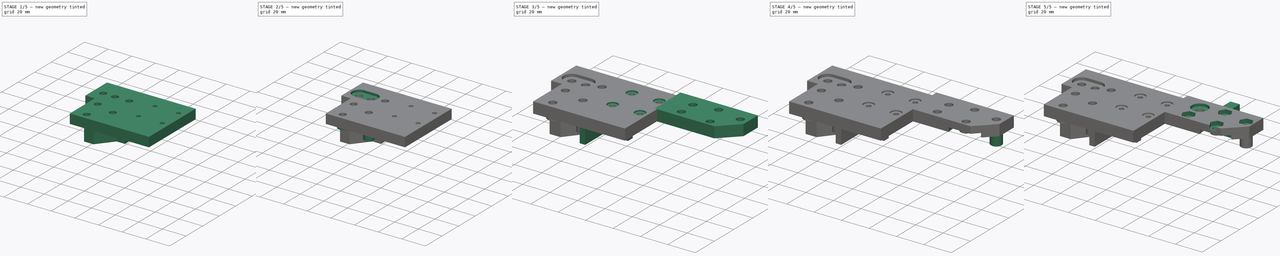
[diagram: build sequence overview — one tinted view per stage of 5, left to right]
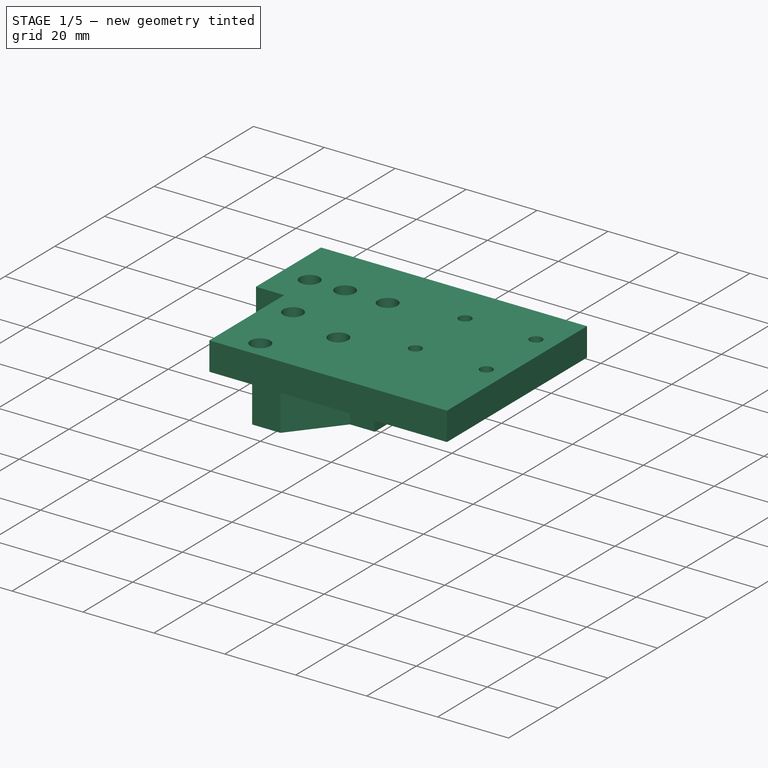
[diagram: stage 1 of 5 — iso view after this stage's code; geometry added in this stage tinted green]
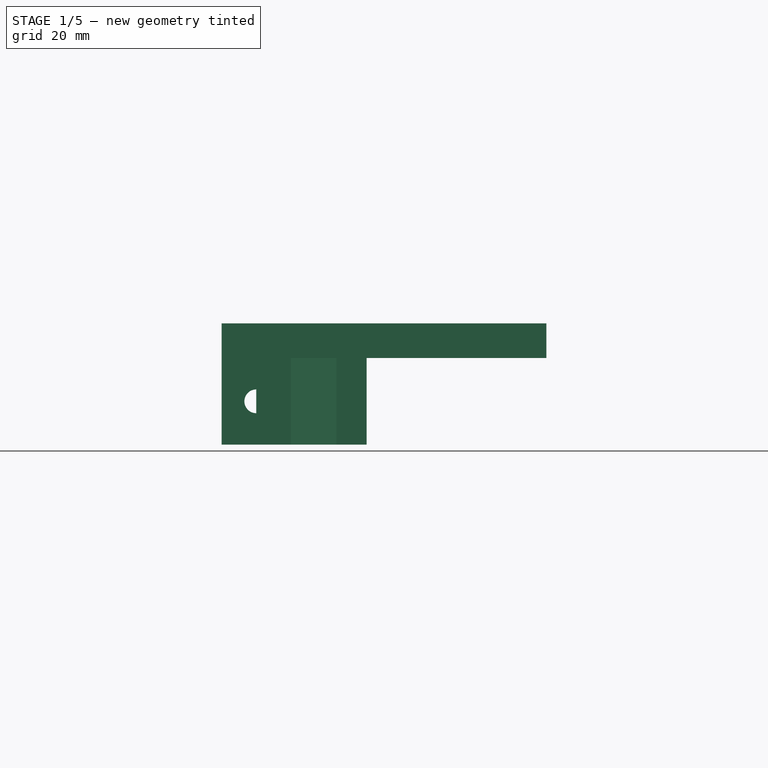
[diagram: stage 1 of 5 — front view after this stage's code; geometry added in this stage tinted green]
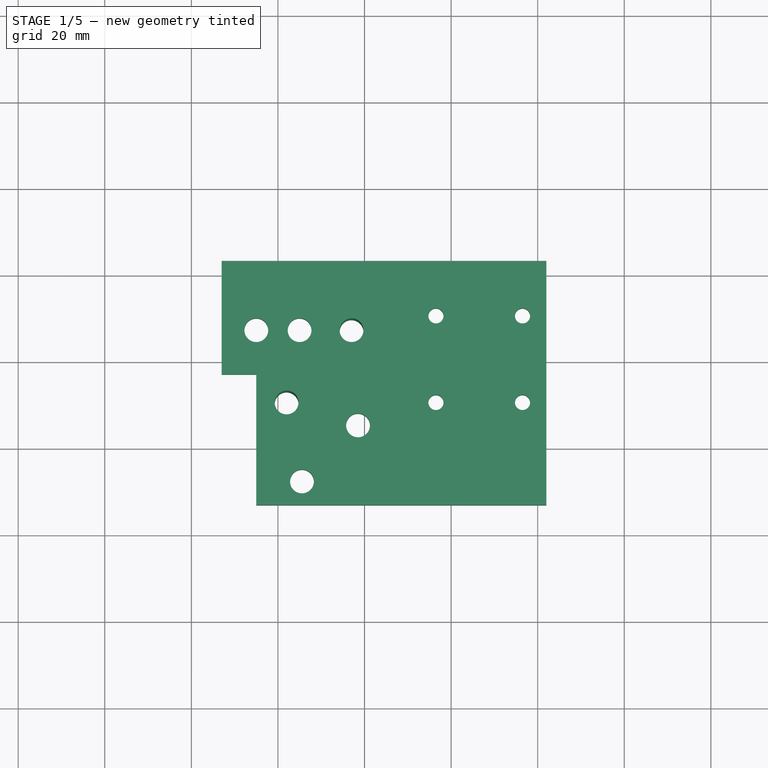
[diagram: stage 1 of 5 — top view after this stage's code; geometry added in this stage tinted green]
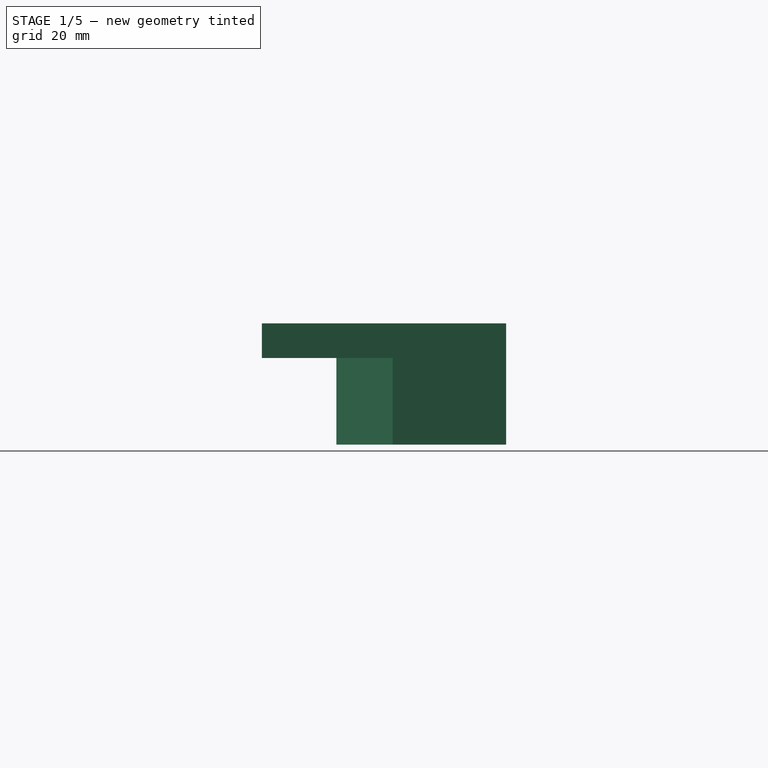
[diagram: stage 1 of 5 — right view after this stage's code; geometry added in this stage tinted green]
FCSTD DOCUMENT  (FreeCAD 0.20R27518 (Git))
Label: gantry right bracket
License: All rights reserved
LicenseURL: http://en.wikipedia.org/wiki/All_rights_reserved
objects: Sketcher::SketchObject×21, PartDesign::Pad×14, PartDesign::Pocket×7, PartDesign::Body×2, Part::Feature×1, PartDesign::SubShapeBinder×1, Part::FeaturePython×1, PartDesign::Plane×1
note: 69 computed .brp shape members not serialized (recipe doc carries the construction recipe); baked Part::Feature solids carry a one-line shape summary decoded from their .brp

FEATURE [Part::Feature] Part__Feature  label="MGN12H"
  Placement = pos=(-13.5,23,-11) rot=(0,0,1;0rad)
  shape: bbox 27 x 45.4 x 11 mm, 40 faces (baked)
FEATURE [PartDesign::SubShapeBinder] Binder
  BindCopyOnChange = 0
  BindMode = 0
  ClaimChildren = false
  Context = -> Body [Binder.]
  Fuse = false
  MakeFace = true
  PartialLoad = false
  Relative = true
  Support = -> [Part__Feature]
  _Version = 2
FEATURE [Sketcher::SketchObject] Sketch
  ExternalGeometry = -> [Binder]
  FullyConstrained = true
  MapMode = 5
  Support = -> [XY_Plane]
  sketch-geometry (16):
    g0: Circle CenterX=-23.5 CenterY=10.3 CenterZ=0 NormalX=0 NormalY=0 NormalZ=1 AngleXU=0 Radius=1.75
    g1: Circle CenterX=-3.5 CenterY=10.3 CenterZ=0 NormalX=0 NormalY=0 NormalZ=1 AngleXU=0 Radius=1.75
    g2: Circle CenterX=-23.5 CenterY=-9.7 CenterZ=0 NormalX=0 NormalY=0 NormalZ=1 AngleXU=0 Radius=1.75
    g3: Circle CenterX=-3.5 CenterY=-9.7 CenterZ=0 NormalX=0 NormalY=0 NormalZ=1 AngleXU=0 Radius=1.75
    g4: Circle CenterX=-55 CenterY=7 CenterZ=0 NormalX=0 NormalY=0 NormalZ=1 AngleXU=0 Radius=2.75
    g5: LineSegment StartX=0 StartY=23 StartZ=0 EndX=-73 EndY=23 EndZ=0
    g6: LineSegment StartX=0 StartY=-33.4 StartZ=0 EndX=-65 EndY=-33.4 EndZ=0
    g7: Circle CenterX=-41.5 CenterY=-15 CenterZ=0 NormalX=0 NormalY=0 NormalZ=1 AngleXU=0 Radius=2.75
    g8: Circle CenterX=-54.45 CenterY=-27.95 CenterZ=0 NormalX=0 NormalY=0 NormalZ=1 AngleXU=0 Radius=2.75
    g9: LineSegment StartX=0 StartY=23 StartZ=0 EndX=2 EndY=23 EndZ=0
    g10: LineSegment StartX=2 StartY=23 StartZ=0 EndX=2 EndY=-33.4 EndZ=0
    g11: LineSegment StartX=2 StartY=-33.4 StartZ=0 EndX=0 EndY=-33.4 EndZ=0
    g12: LineSegment StartX=-73 StartY=23 StartZ=0 EndX=-73 EndY=-3.2 EndZ=0
    g13: LineSegment StartX=-73 StartY=-3.2 StartZ=0 EndX=-65 EndY=-3.2 EndZ=0
    g14: LineSegment StartX=-65 StartY=-3.2 StartZ=0 EndX=-65 EndY=-33.4 EndZ=0
    g15: Circle CenterX=-65 CenterY=7 CenterZ=0 NormalX=0 NormalY=0 NormalZ=1 AngleXU=0 Radius=2.75
  constraints (44):
    c: Coincident(g0,g-3)
    c: Coincident(g1,g-4)
    c: Coincident(g2,g-5)
    c: Coincident(g3,g-6)
    c: Diameter(g0) = 3.5
    c: Equal(g0,g1)
    c: Equal(g1,g2)
    c: Equal(g2,g3)
    c: PointOnObject(g6,g-2)
    c: Diameter(g4) = 5.5
    c: Horizontal(g5)
    c: PointOnObject(g-8,g5)
    c: Horizontal(g6)
    c: DistanceY(g6,g-7) = 11
    c: Equal(g4,g7)
    c: Equal(g7,g8)
    c: DistanceY(g7,g5) = 38
    c: DistanceX(g5,g7) = -41.5
    c: DistanceX(g5,g8) = -54.45
    c: DistanceY(g8,g5) = 50.95
    c: PointOnObject(g5,g-2)
    c: Coincident(g9,g5)
    c: Horizontal(g9)
    c: Coincident(g10,g9)
    c: Vertical(g10)
    c: Coincident(g11,g10)
    c: Coincident(g11,g6)
    c: Horizontal(g11)
    c: DistanceX(g11,g11) = -2
    c: DistanceY(g4,g5) = 16
    c: DistanceX(g4,g5) = 55
    c: DistanceX(g6,g6) = 65
    c: DistanceX(g5,g5) = 73
    c: Coincident(g12,g5)
    c: Vertical(g12)
    c: Coincident(g13,g12)
    c: Horizontal(g13)
    c: Coincident(g14,g13)
    c: Coincident(g14,g6)
    c: Vertical(g14)
    c: DistanceY(g12,g12) = 26.2
    c: Horizontal(g15,g4)
    c: Equal(g15,g4)
    c: DistanceX(g15,g4) = 10
FEATURE [PartDesign::Pad] Pad
  Direction = (0,0,1)
  Length = 8
  Length2 = 100
  Profile = -> Sketch
  ReferenceAxis = -> Sketch [N_Axis]
  Refine = true
  Type = 0
FEATURE [Sketcher::SketchObject] Sketch001
  AttachmentOffset = pos=(0,0,0) rot=(1,0,0;3.14159rad)
  ExternalGeometry = -> [Binder]
  FullyConstrained = true
  MapMode = 5
  Placement = pos=(0,0,0) rot=(1,0,0;3.14159rad)
  Support = -> [XY_Plane]
  sketch-geometry (11):
    g0: LineSegment StartX=-73 StartY=-23 StartZ=0 EndX=-39.5 EndY=-23 EndZ=0
    g1: LineSegment StartX=-73 StartY=-23 StartZ=0 EndX=-73 EndY=-17 EndZ=0
    g2: LineSegment StartX=-73 StartY=-17 StartZ=0 EndX=-47.5 EndY=-17 EndZ=0
    g3: LineSegment StartX=-47.5 StartY=-17 StartZ=0 EndX=-47.5 EndY=3.2 EndZ=0
    g4: LineSegment StartX=-47.5 StartY=3.2 StartZ=0 EndX=-65 EndY=3.2 EndZ=0
    g5: LineSegment StartX=-65 StartY=3.2 StartZ=0 EndX=-65 EndY=16.2 EndZ=0
    g6: LineSegment StartX=-65 StartY=16.2 StartZ=0 EndX=-57 EndY=16.2 EndZ=0
    g7: LineSegment StartX=-57 StartY=16.2 StartZ=0 EndX=-46.5 EndY=3.2 EndZ=0
    g8: LineSegment StartX=-46.5 StartY=3.2 StartZ=0 EndX=-39.5 EndY=3.2 EndZ=0
    g9: LineSegment StartX=-39.5 StartY=3.2 StartZ=0 EndX=-39.5 EndY=-23 EndZ=0
    g10: GeomPoint X=-13.5 Y=9.7 Z=0
  constraints (31):
    c: Horizontal(g0)
    c: Coincident(g1,g0)
    c: DistanceY(g1,g1) = 6
    c: Coincident(g2,g1)
    c: Horizontal(g2)
    c: Coincident(g3,g2)
    c: Vertical(g3)
    c: Coincident(g4,g3)
    c: Horizontal(g4)
    c: DistanceY(g3,g3) = 20.2
    c: Coincident(g5,g4)
    c: Vertical(g5)
    c: DistanceY(g5,g5) = 13
    c: Coincident(g6,g5)
    c: Horizontal(g6)
    c: DistanceX(g6,g6) = 8
    c: Coincident(g7,g6)
    c: Coincident(g8,g7)
    c: Horizontal(g8)
    c: Coincident(g9,g8)
    c: Coincident(g9,g0)
    c: Vertical(g9)
    c: DistanceX(g8,g8) = 7
    c: DistanceX(g3,g8) = 8
    c: DistanceX(g3,g10) = 34
    c: Horizontal(g3,g7)
    c: DistanceX(g5,g-1) = 65
    c: DistanceY(g-1,g8) = 3.2
    c: Symmetric(g-3,g-4,g10)
    c: DistanceX(g0,g-1) = 73
    c: Vertical(g1)
FEATURE [PartDesign::Pad] Pad001
  BaseFeature = -> Pad
  Direction = (0,-1e-16,-1)
  Length = 20
  Length2 = 100
  Profile = -> Sketch001
  ReferenceAxis = -> Sketch001 [N_Axis]
  Refine = true
  Type = 0
FEATURE [Sketcher::SketchObject] Sketch004
  FullyConstrained = true
  MapMode = 5
  Placement = pos=(0,0,0) rot=(0,0.707107,0.707107;3.14159rad)
  Support = -> [XZ_Plane]
  sketch-geometry (2):
    g0: Circle CenterX=55 CenterY=-10 CenterZ=0 NormalX=0 NormalY=0 NormalZ=1 AngleXU=0 Radius=2.75
    g1: Circle CenterX=65 CenterY=-10 CenterZ=0 NormalX=0 NormalY=0 NormalZ=1 AngleXU=0 Radius=2.75
  constraints (6):
    c: Diameter(g0) = 5.5
    c: DistanceX(g-1,g0) = 55
    c: Equal(g0,g1)
    c: Horizontal(g0,g1)
    c: DistanceX(g0,g1) = 10
    c: DistanceY(g0,g-1) = 10
FEATURE [PartDesign::Pocket] Pocket
  BaseFeature = -> Pad001
  Direction = (0,-1,-2e-16)
  Length = 10
  Length2 = 100
  Profile = -> Sketch004
  ReferenceAxis = -> Sketch004 [N_Axis]
  Refine = true
  Reversed = true
  Type = 1
FEATURE [Sketcher::SketchObject] Sketch005
  FullyConstrained = true
  MapMode = 5
  Support = -> [XY_Plane]
  sketch-geometry (2):
    g0: Circle CenterX=-58 CenterY=-9.7 CenterZ=0 NormalX=0 NormalY=0 NormalZ=1 AngleXU=0 Radius=2.75
    g1: Circle CenterX=-43 CenterY=7 CenterZ=0 NormalX=0 NormalY=0 NormalZ=1 AngleXU=0 Radius=2.75
  constraints (6):
    c: Diameter(g0) = 5.5
    c: DistanceX(g0,g-1) = 58
    c: DistanceY(g0,g-1) = 9.7
    c: Equal(g1,g0)
    c: DistanceX(g1,g-1) = 43
    c: DistanceY(g1) = 7
FEATURE [PartDesign::Pocket] Pocket001
  BaseFeature = -> Pocket
  Direction = (0,0,-1)
  Length = 5
  Length2 = 100
  Midplane = true
  Profile = -> Sketch005
  ReferenceAxis = -> Sketch005 [N_Axis]
  Refine = true
  Type = 1
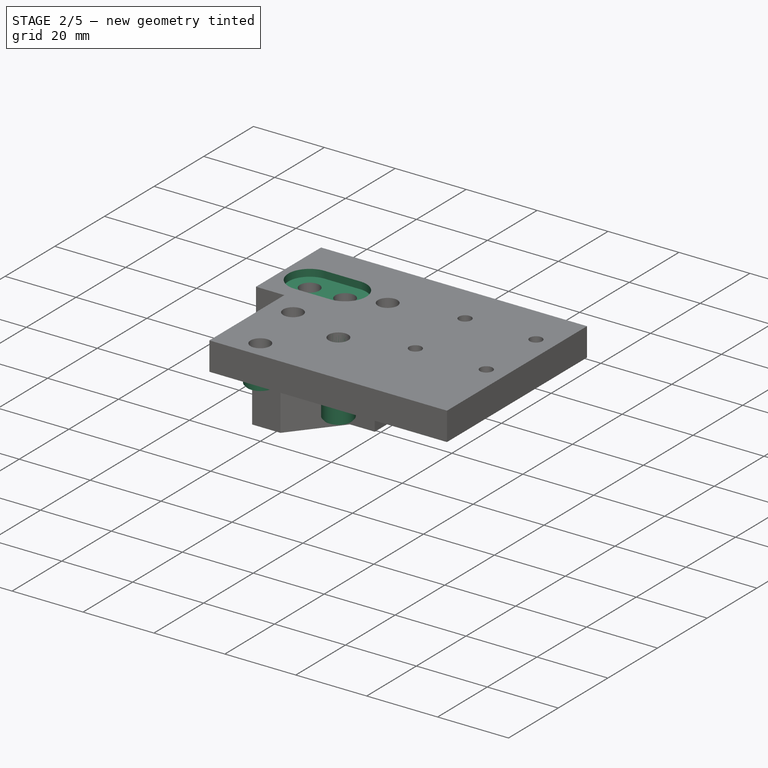
[diagram: stage 2 of 5 — iso view after this stage's code; geometry added in this stage tinted green]
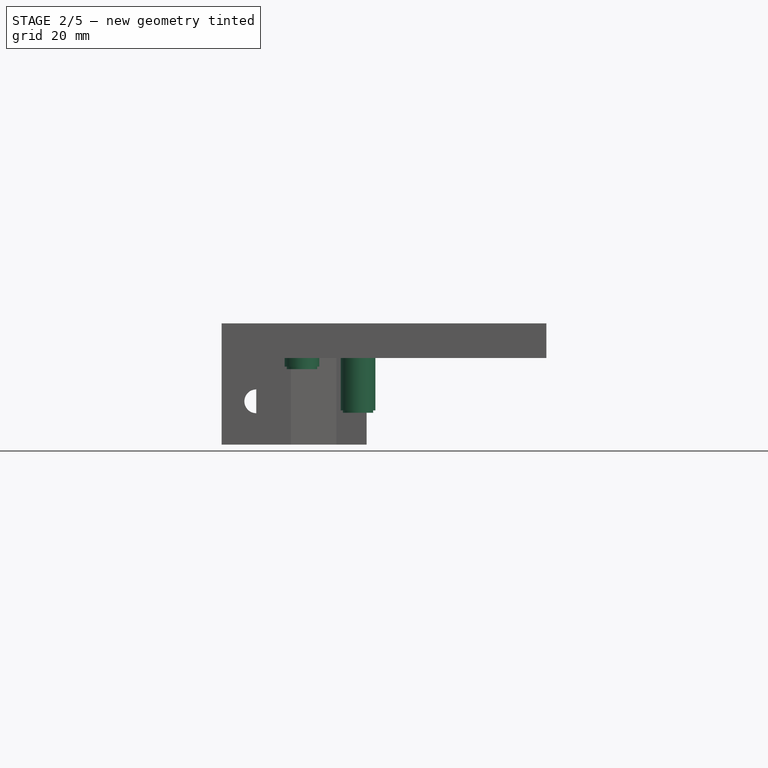
[diagram: stage 2 of 5 — front view after this stage's code; geometry added in this stage tinted green]
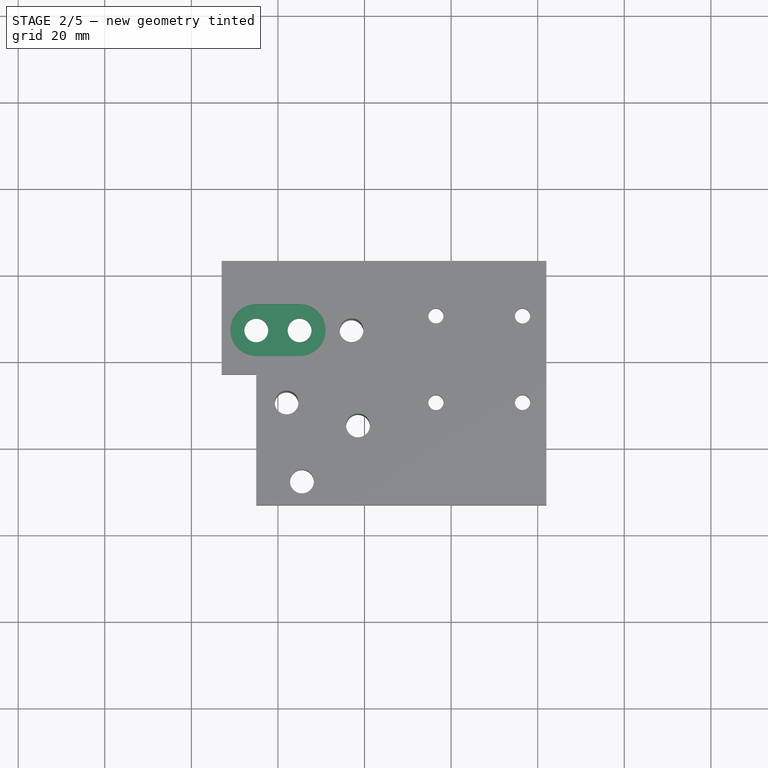
[diagram: stage 2 of 5 — top view after this stage's code; geometry added in this stage tinted green]
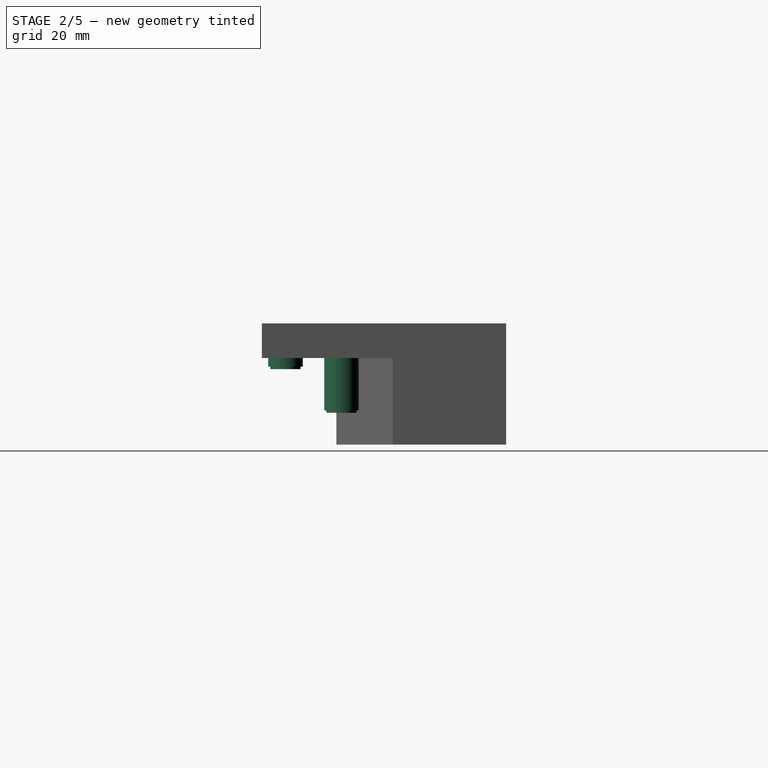
[diagram: stage 2 of 5 — right view after this stage's code; geometry added in this stage tinted green]
FEATURE [Sketcher::SketchObject] Sketch008
  FullyConstrained = true
  MapMode = 5
  Support = -> [XY_Plane]
  sketch-geometry (2):
    g0: Circle CenterX=-54.45 CenterY=-27.95 CenterZ=0 NormalX=0 NormalY=0 NormalZ=1 AngleXU=0 Radius=2.75
    g1: Circle CenterX=-54.45 CenterY=-27.95 CenterZ=0 NormalX=0 NormalY=0 NormalZ=1 AngleXU=0 Radius=4
  constraints (5):
    c: Coincident(g1,g0)
    c: Diameter(g1) = 8
    c: DistanceY(g0,g-1) = 27.95
    c: DistanceX(g0,g-1) = 54.45
    c: Diameter(g0) = 5.5
FEATURE [PartDesign::Pad] Pad005
  BaseFeature = -> Pocket001
  Direction = (0,0,1)
  Length = 2
  Length2 = 100
  Profile = -> Sketch008
  ReferenceAxis = -> Sketch008 [N_Axis]
  Refine = true
  Reversed = true
  Type = 0
FEATURE [Sketcher::SketchObject] Sketch009
  FullyConstrained = true
  MapMode = 5
  Placement = pos=(0,0,-2) rot=(1,0,0;3.14159rad)
  Support = -> [Pad005]
  sketch-geometry (2):
    g0: Circle CenterX=-54.45 CenterY=27.95 CenterZ=0 NormalX=0 NormalY=0 NormalZ=1 AngleXU=0 Radius=2.75
    g1: Circle CenterX=-54.45 CenterY=27.95 CenterZ=0 NormalX=0 NormalY=0 NormalZ=1 AngleXU=0 Radius=3.5
  constraints (5):
    c: Coincident(g1,g0)
    c: Diameter(g1) = 7
    c: DistanceX(g0,g-1) = 54.45
    c: DistanceY(g0) = 27.95
    c: Diameter(g0) = 5.5
FEATURE [PartDesign::Pad] Pad006
  BaseFeature = -> Pad005
  Direction = (0,0,-1)
  Length = 0.55
  Length2 = 100
  Profile = -> Sketch009
  ReferenceAxis = -> Sketch009 [N_Axis]
  Refine = true
  Type = 0
FEATURE [Sketcher::SketchObject] Sketch010
  FullyConstrained = true
  MapMode = 5
  Support = -> [XY_Plane]
  sketch-geometry (2):
    g0: Circle CenterX=-41.5 CenterY=-15 CenterZ=0 NormalX=0 NormalY=0 NormalZ=1 AngleXU=0 Radius=2.75
    g1: Circle CenterX=-41.5 CenterY=-15 CenterZ=0 NormalX=0 NormalY=0 NormalZ=1 AngleXU=0 Radius=4
  constraints (5):
    c: Coincident(g1,g0)
    c: Diameter(g1) = 8
    c: DistanceX(g0,g-1) = 41.5
    c: DistanceY(g0,g-1) = 15
    c: Diameter(g0) = 5.5
FEATURE [PartDesign::Pad] Pad007
  BaseFeature = -> Pad006
  Direction = (0,0,1)
  Length = 12.1
  Length2 = 100
  Profile = -> Sketch010
  ReferenceAxis = -> Sketch010 [N_Axis]
  Refine = true
  Reversed = true
  Type = 0
FEATURE [Sketcher::SketchObject] Sketch011
  FullyConstrained = true
  MapMode = 5
  Placement = pos=(0,0,-12.1) rot=(1,0,0;3.14159rad)
  Support = -> [Pad007]
  sketch-geometry (2):
    g0: Circle CenterX=-41.5 CenterY=15 CenterZ=0 NormalX=0 NormalY=0 NormalZ=1 AngleXU=0 Radius=2.75
    g1: Circle CenterX=-41.5 CenterY=15 CenterZ=0 NormalX=0 NormalY=0 NormalZ=1 AngleXU=0 Radius=3.5
  constraints (5):
    c: Coincident(g1,g0)
    c: Diameter(g1) = 7
    c: DistanceX(g0,g-1) = 41.5
    c: DistanceY(g-1,g0) = 15
    c: Diameter(g0) = 5.5
FEATURE [PartDesign::Pad] Pad008
  BaseFeature = -> Pad007
  Direction = (0,0,-1)
  Length = 0.55
  Length2 = 100
  Profile = -> Sketch011
  ReferenceAxis = -> Sketch011 [N_Axis]
  Refine = true
  Type = 0
FEATURE [PartDesign::Body] Body001  label="Bottom"
  Group = -> [Sketch007,Pad004,Sketch012,Pocket003,Sketch022,Pad015,Sketch023,Pad016,Sketch024,Pad017,Sketch025,Pad018,Sketch026,Pocket005,Sketch027,Pocket006,Sketch028,Pad019]
  Origin = -> Origin001
  Placement = pos=(-37.5,23,-20) rot=(0.707107,-0.707107,0;3.14159rad)
  Tip = -> Pad019
FEATURE [PartDesign::Plane] DatumPlane
  AttachmentOffset = pos=(0,0,8) rot=(0,0,1;0rad)
  Length = 113.13
  MapMode = 5
  Placement = pos=(0,0,8) rot=(0,0,1;0rad)
  ResizeMode = 0
  Support = -> [XY_Plane]
  Width = 73.5304
FEATURE [Sketcher::SketchObject] Sketch017
  FullyConstrained = true
  MapMode = 5
  Placement = pos=(0,0,8) rot=(0,0,1;0rad)
  Support = -> [DatumPlane]
  sketch-geometry (4):
    g0: ArcOfCircle CenterX=-65 CenterY=7 CenterZ=0 NormalX=0 NormalY=0 NormalZ=1 AngleXU=0 Radius=6 StartAngle=1.5708 EndAngle=4.71239
    g1: ArcOfCircle CenterX=-55 CenterY=7 CenterZ=0 NormalX=0 NormalY=0 NormalZ=1 AngleXU=0 Radius=6 StartAngle=4.71239 EndAngle=7.85398
    g2: LineSegment StartX=-65 StartY=1 StartZ=0 EndX=-55 EndY=1 EndZ=0
    g3: LineSegment StartX=-55 StartY=13 StartZ=0 EndX=-65 EndY=13 EndZ=0
  constraints (10):
    c: Tangent(g0,g2) = -1.5708
    c: Tangent(g2,g1) = -1.5708
    c: Tangent(g1,g3) = -1.5708
    c: Tangent(g3,g0) = -1.5708
    c: Equal(g0,g1)
    c: Diameter(g1) = 12
    c: DistanceX(g1,g-1) = 55
    c: DistanceY(g-1,g1) = 7
    c: DistanceX(g3,g3) = 10
    c: Horizontal(g3)
FEATURE [PartDesign::Pocket] Pocket004
  BaseFeature = -> Pad008
  Direction = (0,0,-1)
  Length = 2
  Length2 = 100
  Offset = 6
  Profile = -> Sketch017
  ReferenceAxis = -> Sketch017 [N_Axis]
  Refine = true
  Type = 0
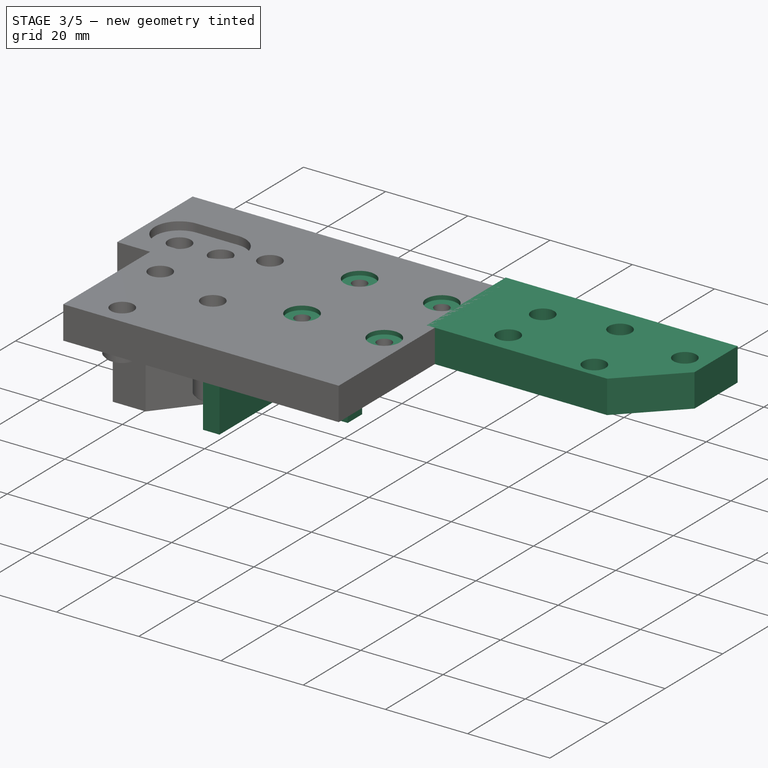
[diagram: stage 3 of 5 — iso view after this stage's code; geometry added in this stage tinted green]
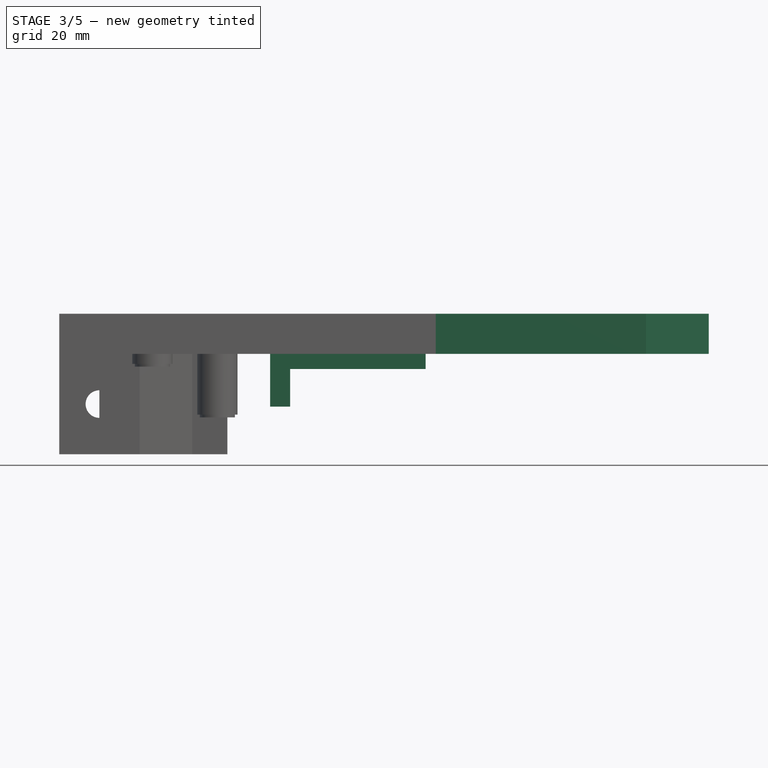
[diagram: stage 3 of 5 — front view after this stage's code; geometry added in this stage tinted green]
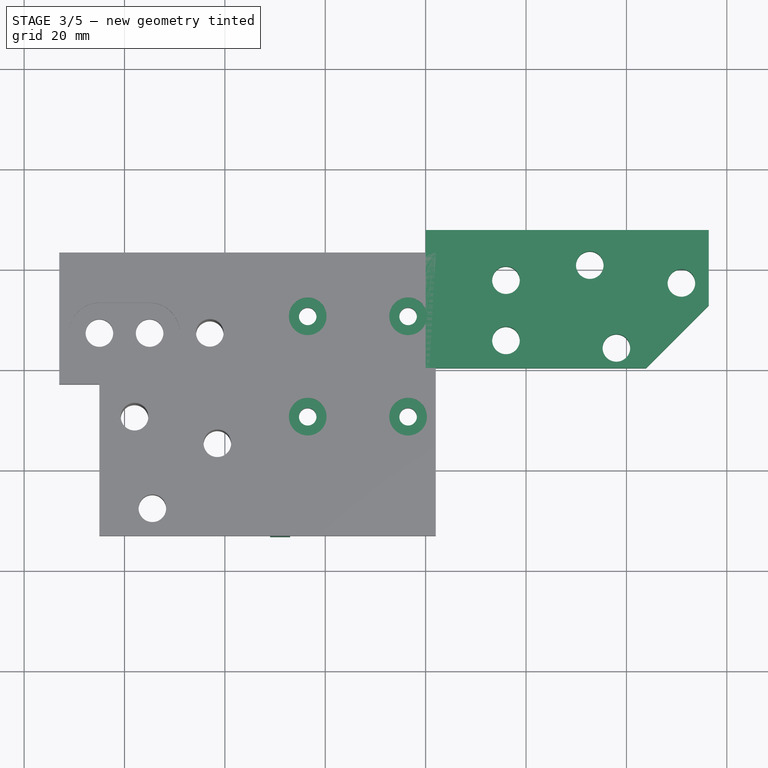
[diagram: stage 3 of 5 — top view after this stage's code; geometry added in this stage tinted green]
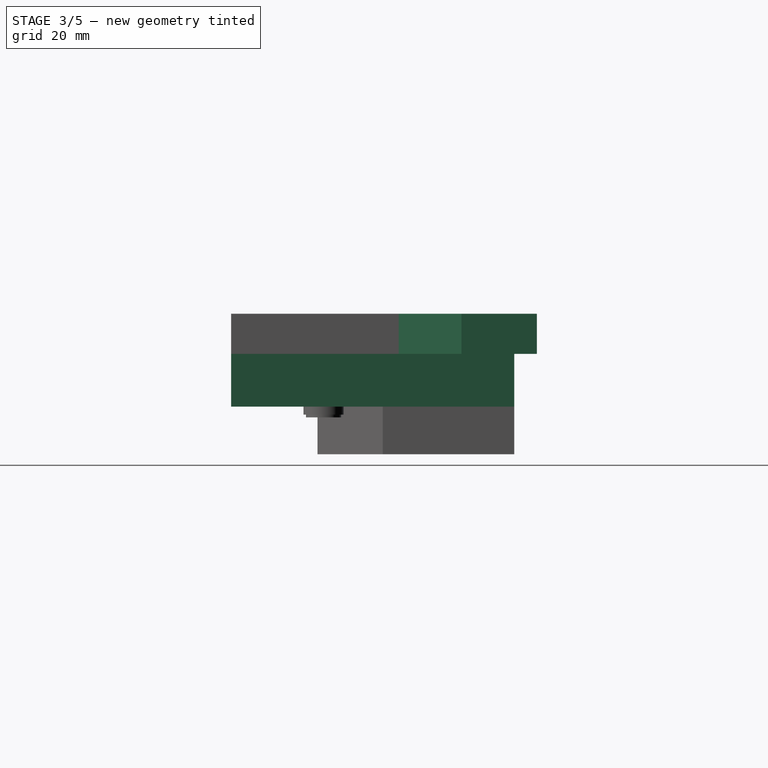
[diagram: stage 3 of 5 — right view after this stage's code; geometry added in this stage tinted green]
FEATURE [Sketcher::SketchObject] Sketch007
  FullyConstrained = true
  MapMode = 5
  Support = -> [XY_Plane001]
  sketch-geometry (10):
    g0: LineSegment StartX=0 StartY=27.5 StartZ=0 EndX=56.4 EndY=27.5 EndZ=0
    g1: LineSegment StartX=56.4 StartY=27.5 StartZ=0 EndX=56.4 EndY=12.5 EndZ=0
    g2: LineSegment StartX=43.9 StartY=0 StartZ=0 EndX=0 EndY=0 EndZ=0
    g3: LineSegment StartX=0 StartY=0 StartZ=0 EndX=0 EndY=27.5 EndZ=0
    g4: Circle CenterX=16 CenterY=17.5 CenterZ=0 NormalX=0 NormalY=0 NormalZ=1 AngleXU=0 Radius=2.75
    g5: Circle CenterX=16 CenterY=5.5 CenterZ=0 NormalX=0 NormalY=0 NormalZ=1 AngleXU=0 Radius=2.75
    g6: Circle CenterX=32.7 CenterY=20.5 CenterZ=0 NormalX=0 NormalY=0 NormalZ=1 AngleXU=0 Radius=2.75
    g7: Circle CenterX=38 CenterY=4 CenterZ=0 NormalX=0 NormalY=0 NormalZ=1 AngleXU=0 Radius=2.75
    g8: Circle CenterX=50.95 CenterY=16.95 CenterZ=0 NormalX=0 NormalY=0 NormalZ=1 AngleXU=0 Radius=2.75
    g9: LineSegment StartX=43.9 StartY=0 StartZ=0 EndX=56.4 EndY=12.5 EndZ=0
  constraints (29):
    c: Coincident(g2,g3)
    c: Coincident(g3,g0)
    c: Horizontal(g0)
    c: Horizontal(g2)
    c: Vertical(g1)
    c: Vertical(g3)
    c: Coincident(g2,g-1)
    c: DistanceY(g3,g3) = 27.5
    c: Vertical(g4,g5)
    c: Diameter(g4) = 5.5
    c: Equal(g4,g6)
    c: Equal(g4,g5)
    c: Equal(g5,g7)
    c: Equal(g7,g8)
    c: DistanceX(g5) = 16
    c: DistanceY(g5,g4) = 12
    c: DistanceY(g1,g1) = 15
    c: DistanceY(g4,g0) = 10
    c: Coincident(g1,g0)
    c: Coincident(g9,g2)
    c: Coincident(g9,g1)
    c: DistanceX(g2,g1) = 56.4
    c: Angle(g1,g9) = 2.35619
    c: DistanceX(g2,g7) = 38
    c: DistanceY(g2,g7) = 4
    c: DistanceX(g2,g6) = 32.7
    c: DistanceY(g6,g0) = 7
    c: DistanceX(g2,g8) = 50.95
    c: DistanceY(g2,g8) = 16.95
FEATURE [PartDesign::Pad] Pad004
  Direction = (0,0,1)
  Length = 8
  Length2 = 100
  Profile = -> Sketch007
  ReferenceAxis = -> Sketch007 [N_Axis]
  Refine = true
  Type = 0
FEATURE [PartDesign::Pad] Pad013
  BaseFeature = -> Pocket004
  Direction = (0,-1,-2e-16)
  Length = 33.4
  Length2 = 23
  Profile = -> Sketch020
  ReferenceAxis = -> Sketch020 [N_Axis]
  Refine = true
  Type = 4
FEATURE [Sketcher::SketchObject] Sketch021
  ExternalGeometry = -> [Binder,Pad013]
  FullyConstrained = true
  MapMode = 5
  Placement = pos=(0,0,0) rot=(0,1,0;3.14159rad)
  Support = -> [XY_Plane]
  sketch-geometry (4):
    g0: LineSegment StartX=0 StartY=-22.4 StartZ=0 EndX=27 EndY=-22.4 EndZ=0
    g1: LineSegment StartX=27 StartY=-22.4 StartZ=0 EndX=27 EndY=-27.4 EndZ=0
    g2: LineSegment StartX=27 StartY=-27.4 StartZ=0 EndX=0 EndY=-27.4 EndZ=0
    g3: LineSegment StartX=0 StartY=-27.4 StartZ=0 EndX=0 EndY=-22.4 EndZ=0
  constraints (12):
    c: Coincident(g2,g3)
    c: Coincident(g0,g3)
    c: Coincident(g1,g2)
    c: Coincident(g0,g1)
    c: PointOnObject(g-3,g0)
    c: Horizontal(g0)
    c: Vertical(g3)
    c: Vertical(g1)
    c: Horizontal(g2)
    c: DistanceX(g2,g2) = 27
    c: DistanceY(g1,g1) = 5
    c: PointOnObject(g2,g-2)
FEATURE [PartDesign::Pad] Pad014
  BaseFeature = -> Pad013
  Direction = (0,0,-1)
  Length = 3
  Length2 = 10
  Profile = -> Sketch021
  ReferenceAxis = -> Sketch021 [N_Axis]
  Refine = true
  Type = 0
FEATURE [Sketcher::SketchObject] Sketch029
  ExternalGeometry = -> [Binder]
  FullyConstrained = true
  MapMode = 5
  Placement = pos=(0,0,8) rot=(0,0,1;0rad)
  Support = -> [DatumPlane]
  sketch-geometry (4):
    g0: Circle CenterX=-23.5 CenterY=10.3 CenterZ=0 NormalX=0 NormalY=0 NormalZ=1 AngleXU=0 Radius=3.75
    g1: Circle CenterX=-3.5 CenterY=10.3 CenterZ=0 NormalX=0 NormalY=0 NormalZ=1 AngleXU=0 Radius=3.75
    g2: Circle CenterX=-23.5 CenterY=-9.7 CenterZ=0 NormalX=0 NormalY=0 NormalZ=1 AngleXU=0 Radius=3.75
    g3: Circle CenterX=-3.5 CenterY=-9.7 CenterZ=0 NormalX=0 NormalY=0 NormalZ=1 AngleXU=0 Radius=3.75
  constraints (8):
    c: Coincident(g0,g-3)
    c: Coincident(g1,g-4)
    c: Coincident(g2,g-5)
    c: Coincident(g3,g-6)
    c: Diameter(g0) = 7.5
    c: Equal(g0,g1)
    c: Equal(g1,g2)
    c: Equal(g2,g3)
FEATURE [PartDesign::Pocket] Pocket007
  BaseFeature = -> Pad014
  Direction = (0,0,-1)
  Length = 1
  Length2 = 5
  Profile = -> Sketch029
  ReferenceAxis = -> Sketch029 [N_Axis]
  Refine = true
  Type = 0
FEATURE [PartDesign::Body] Body  label="Top"
  Group = -> [Binder,Sketch,Pad,Sketch001,Pad001,Sketch004,Pocket,Sketch005,Pocket001,Sketch008,Pad005,Sketch009,Pad006,Sketch010,Pad007,Sketch011,Pad008,Sketch017,Pocket004,Sketch020,Pad013,Sketch021,Pad014,DatumPlane,Sketch029,Pocket007]
  Origin = -> Origin
  Tip = -> Pocket007
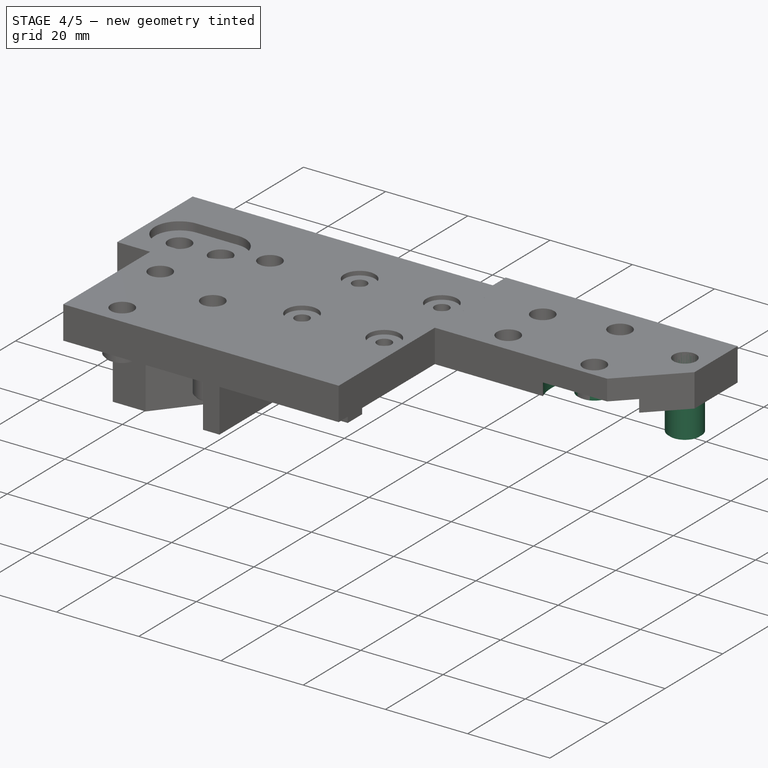
[diagram: stage 4 of 5 — iso view after this stage's code; geometry added in this stage tinted green]
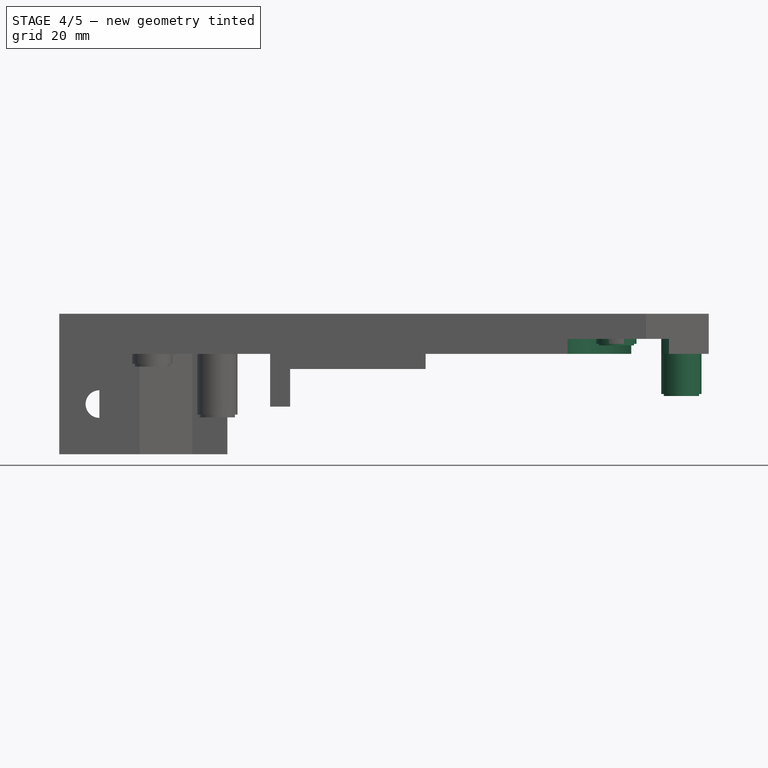
[diagram: stage 4 of 5 — front view after this stage's code; geometry added in this stage tinted green]
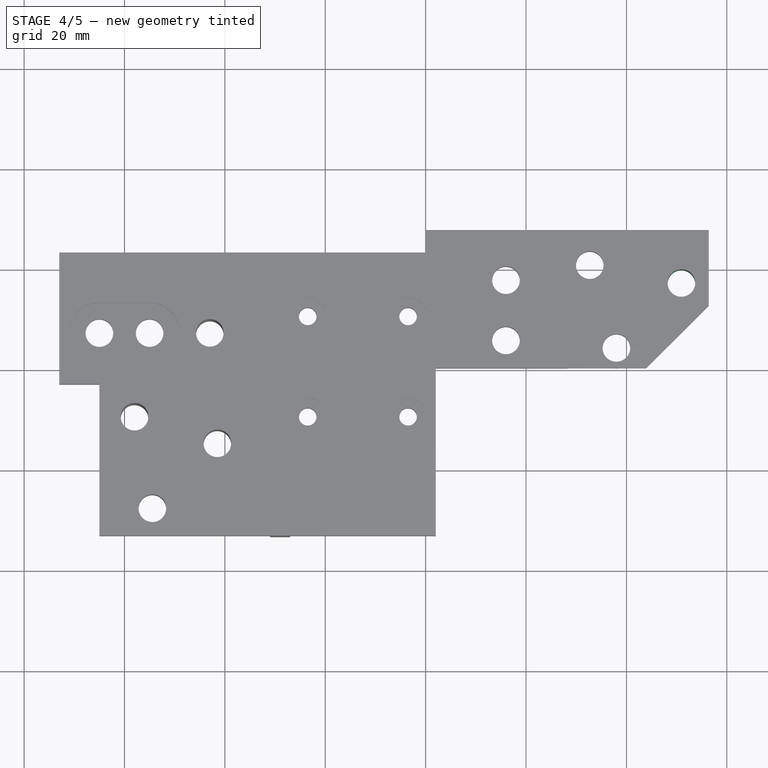
[diagram: stage 4 of 5 — top view after this stage's code; geometry added in this stage tinted green]
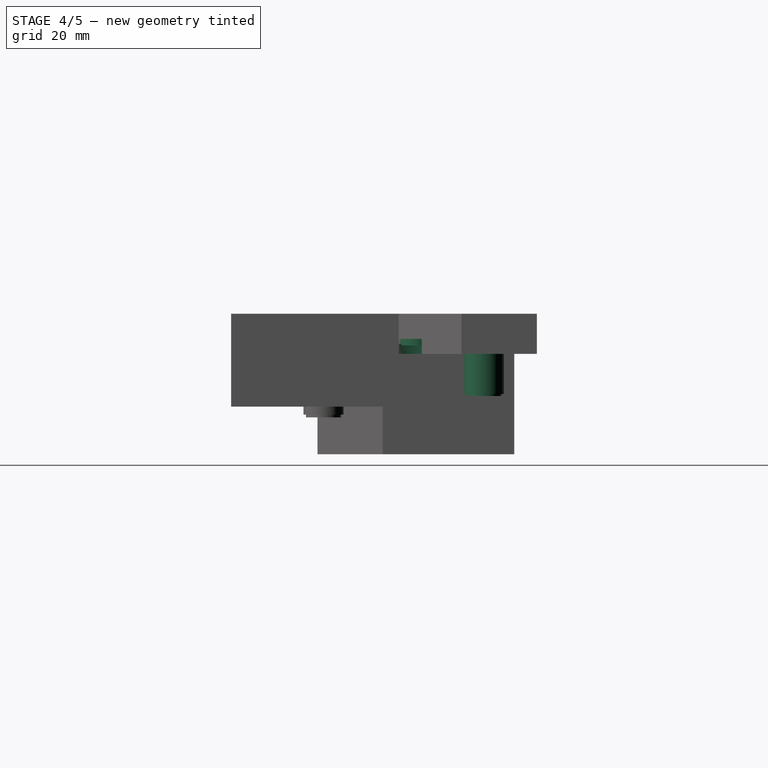
[diagram: stage 4 of 5 — right view after this stage's code; geometry added in this stage tinted green]
FEATURE [Sketcher::SketchObject] Sketch012
  ExternalGeometry = -> [Pad004]
  FullyConstrained = true
  MapMode = 5
  Placement = pos=(0,0,0) rot=(1,0,0;3.14159rad)
  Support = -> [Pad004]
  sketch-geometry (5):
    g0: ArcOfCircle CenterX=38 CenterY=-4 CenterZ=0 NormalX=0 NormalY=0 NormalZ=1 AngleXU=0 Radius=10.5 StartAngle=5.73291 EndAngle=11.2804
    g1: LineSegment StartX=46.95 StartY=-9.49067 StartZ=0 EndX=46.95 EndY=-49.4907 EndZ=0
    g2: LineSegment StartX=40.95 StartY=-14.0771 StartZ=0 EndX=40.95 EndY=-49.4907 EndZ=0
    g3: LineSegment StartX=40.95 StartY=-49.4907 StartZ=0 EndX=46.95 EndY=-49.4907 EndZ=0
    g4: Circle CenterX=50.95 CenterY=-16.95 CenterZ=0 NormalX=0 NormalY=0 NormalZ=1 AngleXU=0 Radius=4
  constraints (14):
    c: Diameter(g0) = 21
    c: Coincident(g-3,g0)
    c: Coincident(g1,g0)
    c: Vertical(g1)
    c: Coincident(g2,g0)
    c: Vertical(g2)
    c: Coincident(g3,g2)
    c: Horizontal(g3)
    c: Coincident(g3,g1)
    c: Coincident(g4,g-4)
    c: Diameter(g4) = 8
    c: Tangent(g4,g1)
    c: DistanceY(g1,g1) = 40
    c: DistanceX(g3,g3) = 6
FEATURE [PartDesign::Pocket] Pocket003
  BaseFeature = -> Pad004
  Direction = (0,0,1)
  Length = 3
  Length2 = 100
  Profile = -> Sketch012
  ReferenceAxis = -> Sketch012 [N_Axis]
  Refine = true
  Type = 0
FEATURE [Sketcher::SketchObject] Sketch020
  ExternalGeometry = -> [Binder]
  FullyConstrained = true
  MapMode = 5
  Placement = pos=(0,0,0) rot=(1,0,0;1.5708rad)
  Support = -> [XZ_Plane]
  sketch-geometry (4):
    g0: LineSegment StartX=-31 StartY=0 StartZ=0 EndX=-31 EndY=-10.5 EndZ=0
    g1: LineSegment StartX=-31 StartY=-10.5 StartZ=0 EndX=-27 EndY=-10.5 EndZ=0
    g2: LineSegment StartX=-27 StartY=-10.5 StartZ=0 EndX=-27 EndY=0 EndZ=0
    g3: LineSegment StartX=-27 StartY=0 StartZ=0 EndX=-31 EndY=0 EndZ=0
  constraints (11):
    c: PointOnObject(g0,g-1)
    c: Vertical(g0)
    c: Coincident(g1,g0)
    c: Horizontal(g1)
    c: DistanceX(g1,g1) = 4
    c: Coincident(g2,g1)
    c: PointOnObject(g2,g-1)
    c: Vertical(g2)
    c: Coincident(g3,g2)
    c: Coincident(g3,g0)
    c: Coincident(g1,g-3)
FEATURE [Sketcher::SketchObject] Sketch022
  ExternalGeometry = -> [Pocket003]
  FullyConstrained = true
  MapMode = 5
  Placement = pos=(0,0,3) rot=(1,0,0;3.14159rad)
  Support = -> [Pocket003]
  sketch-geometry (2):
    g0: Circle CenterX=38 CenterY=-4 CenterZ=0 NormalX=0 NormalY=0 NormalZ=1 AngleXU=0 Radius=2.75
    g1: Circle CenterX=38 CenterY=-4 CenterZ=0 NormalX=0 NormalY=0 NormalZ=1 AngleXU=0 Radius=4
  constraints (4):
    c: Coincident(g0,g-3)
    c: Coincident(g1,g0)
    c: Equal(g0,g-3)
    c: Diameter(g1) = 8
FEATURE [PartDesign::Pad] Pad015
  BaseFeature = -> Pocket003
  Direction = (0,0,-1)
  Length = 1
  Length2 = 10
  Profile = -> Sketch022
  ReferenceAxis = -> Sketch022 [N_Axis]
  Refine = true
  Type = 0
FEATURE [Sketcher::SketchObject] Sketch023
  ExternalGeometry = -> [Pad015]
  FullyConstrained = true
  MapMode = 5
  Placement = pos=(0,0,2) rot=(1,0,0;3.14159rad)
  Support = -> [Pad015]
  sketch-geometry (2):
    g0: Circle CenterX=38 CenterY=-4 CenterZ=0 NormalX=0 NormalY=0 NormalZ=1 AngleXU=0 Radius=2.75
    g1: Circle CenterX=38 CenterY=-4 CenterZ=0 NormalX=0 NormalY=0 NormalZ=1 AngleXU=0 Radius=3.5
  constraints (4):
    c: Coincident(g0,g-3)
    c: Coincident(g1,g0)
    c: Equal(g0,g-3)
    c: Diameter(g1) = 7
FEATURE [PartDesign::Pad] Pad016
  BaseFeature = -> Pad015
  Direction = (0,0,-1)
  Length = 0.3
  Length2 = 10
  Profile = -> Sketch023
  ReferenceAxis = -> Sketch023 [N_Axis]
  Refine = true
  Type = 0
FEATURE [Sketcher::SketchObject] Sketch024
  ExternalGeometry = -> [Pad016]
  FullyConstrained = true
  MapMode = 5
  Placement = pos=(0,0,0) rot=(1,0,0;3.14159rad)
  Support = -> [Pad016]
  sketch-geometry (2):
    g0: Circle CenterX=50.95 CenterY=-16.95 CenterZ=0 NormalX=0 NormalY=0 NormalZ=1 AngleXU=0 Radius=2.75
    g1: Circle CenterX=50.95 CenterY=-16.95 CenterZ=0 NormalX=0 NormalY=0 NormalZ=1 AngleXU=0 Radius=4
  constraints (4):
    c: Coincident(g0,g-3)
    c: Coincident(g1,g0)
    c: Equal(g0,g-3)
    c: Diameter(g1) = 8
FEATURE [PartDesign::Pad] Pad017
  BaseFeature = -> Pad016
  Direction = (0,0,-1)
  Length = 8
  Length2 = 10
  Profile = -> Sketch024
  ReferenceAxis = -> Sketch024 [N_Axis]
  Refine = true
  Type = 0
FEATURE [Sketcher::SketchObject] Sketch025
  ExternalGeometry = -> [Pad017]
  FullyConstrained = true
  MapMode = 5
  Placement = pos=(0,0,-8) rot=(1,0,0;3.14159rad)
  Support = -> [Pad017]
  sketch-geometry (2):
    g0: Circle CenterX=50.95 CenterY=-16.95 CenterZ=0 NormalX=0 NormalY=0 NormalZ=1 AngleXU=0 Radius=2.75
    g1: Circle CenterX=50.95 CenterY=-16.95 CenterZ=0 NormalX=0 NormalY=0 NormalZ=1 AngleXU=0 Radius=3.5
  constraints (4):
    c: Coincident(g0,g-3)
    c: Equal(g0,g-3)
    c: Coincident(g1,g0)
    c: Diameter(g1) = 7
FEATURE [PartDesign::Pad] Pad018
  BaseFeature = -> Pad017
  Direction = (0,0,-1)
  Length = 0.4
  Length2 = 10
  Profile = -> Sketch025
  ReferenceAxis = -> Sketch025 [N_Axis]
  Refine = true
  Type = 0
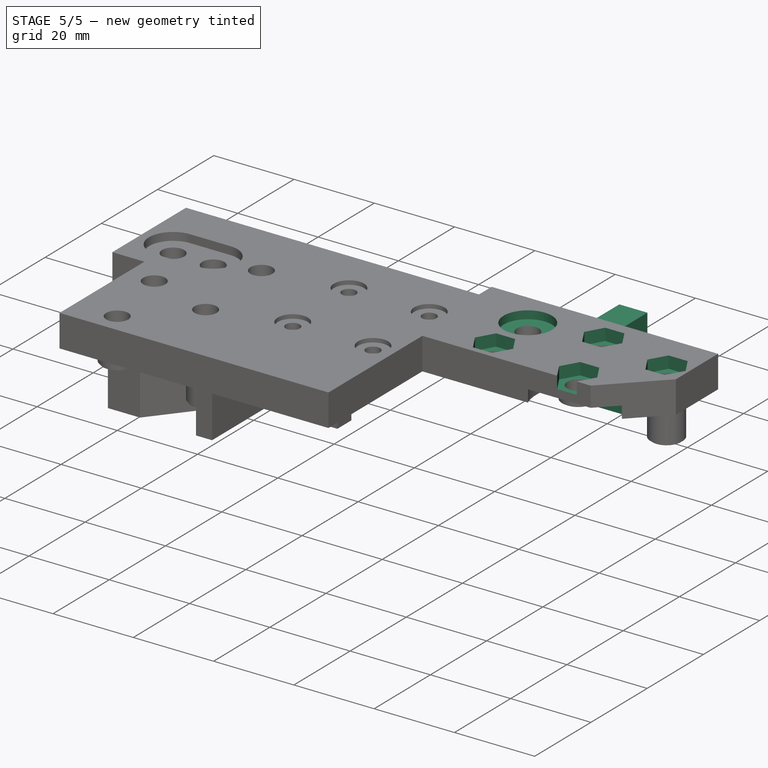
[diagram: stage 5 of 5 — iso view after this stage's code; geometry added in this stage tinted green]
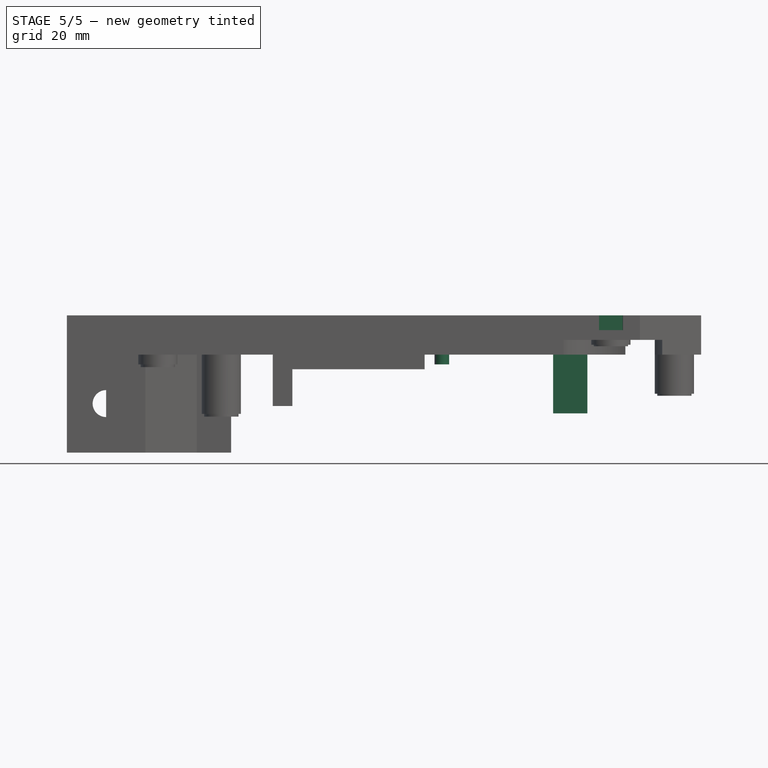
[diagram: stage 5 of 5 — front view after this stage's code; geometry added in this stage tinted green]
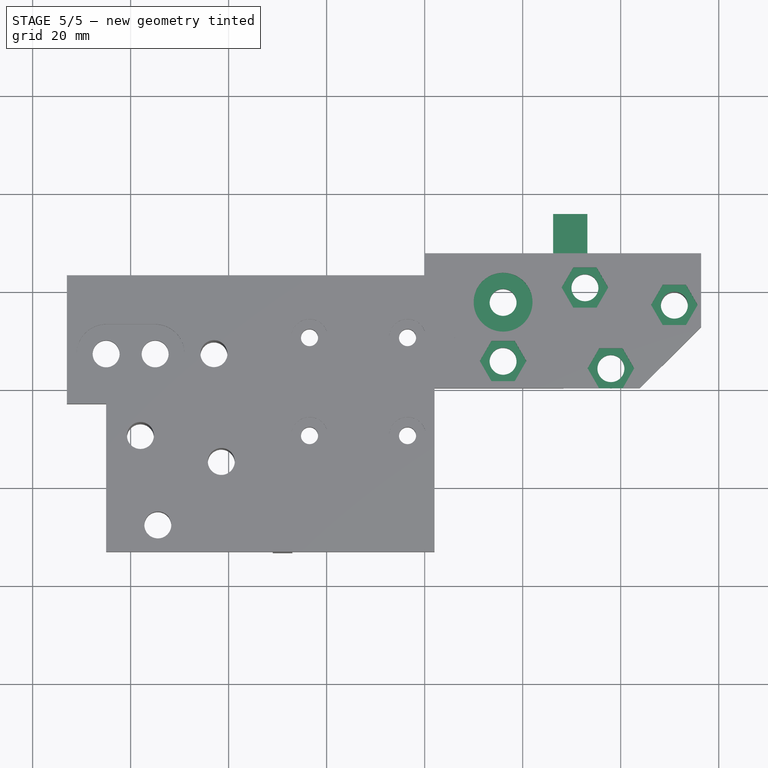
[diagram: stage 5 of 5 — top view after this stage's code; geometry added in this stage tinted green]
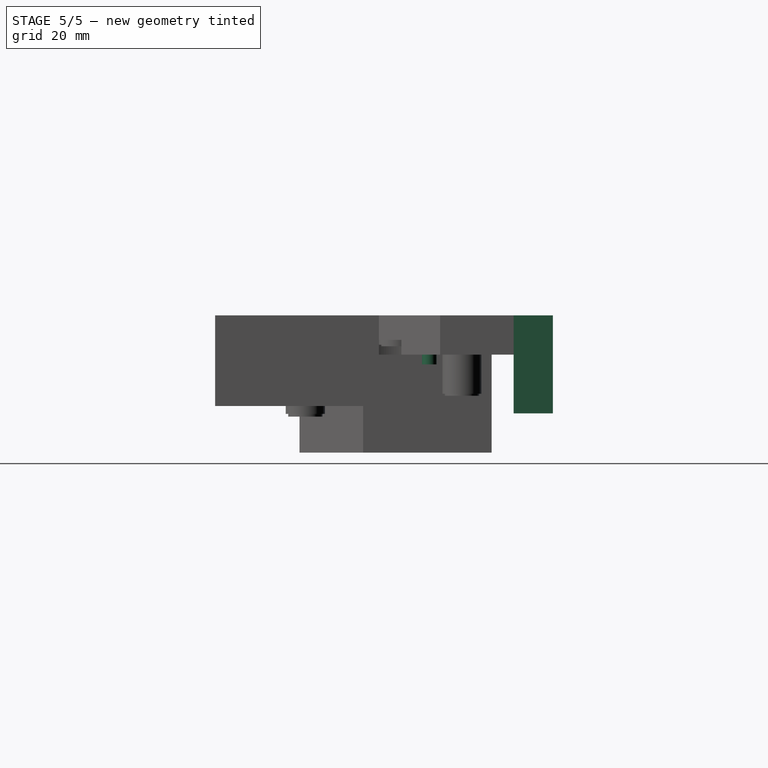
[diagram: stage 5 of 5 — right view after this stage's code; geometry added in this stage tinted green]
FEATURE [Part::FeaturePython] Screw  label="M3x10-Screw"  # Fasteners workbench fastener (typed FeaturePython)
  Placement = pos=(3.5,10.3,8) rot=(0,0,1;0rad)
  diameter = 4
  invert = false
  length = 4
  lengthCustom = 10
  matchOuter = false
  offset = 0
  thread = false
  type = 36
FEATURE [Sketcher::SketchObject] Sketch026
  ExternalGeometry = -> [Pad018]
  FullyConstrained = true
  MapMode = 5
  Placement = pos=(0,0,8) rot=(0,0,1;0rad)
  Support = -> [Pad018]
  sketch-geometry (1):
    g0: Circle CenterX=16 CenterY=17.5 CenterZ=0 NormalX=0 NormalY=0 NormalZ=1 AngleXU=0 Radius=6
  constraints (2):
    c: Diameter(g0) = 12
    c: Coincident(g0,g-3)
FEATURE [PartDesign::Pocket] Pocket005
  BaseFeature = -> Pad018
  Direction = (0,0,-1)
  Length = 0
  Length2 = 5
  Offset = 6
  Profile = -> Sketch026
  ReferenceAxis = -> Sketch026 [N_Axis]
  Refine = true
  Reversed = true
  Type = 3
  UpToFace = -> Pad018 [Face4]
FEATURE [Sketcher::SketchObject] Sketch027
  ExternalGeometry = -> [Pocket005]
  FullyConstrained = true
  MapMode = 5
  Placement = pos=(0,0,8) rot=(0,0,1;0rad)
  Support = -> [Pocket005]
  sketch-geometry (28):
    g0: LineSegment StartX=20.75 StartY=5.5 StartZ=0 EndX=18.375 EndY=9.61362 EndZ=0
    g1: LineSegment StartX=18.375 StartY=9.61362 StartZ=0 EndX=13.625 EndY=9.61362 EndZ=0
    g2: LineSegment StartX=13.625 StartY=9.61362 StartZ=0 EndX=11.25 EndY=5.5 EndZ=0
    g3: LineSegment StartX=11.25 StartY=5.5 StartZ=0 EndX=13.625 EndY=1.38638 EndZ=0
    g4: LineSegment StartX=13.625 StartY=1.38638 StartZ=0 EndX=18.375 EndY=1.38638 EndZ=0
    g5: LineSegment StartX=18.375 StartY=1.38638 StartZ=0 EndX=20.75 EndY=5.5 EndZ=0
    g6: Circle CenterX=16 CenterY=5.5 CenterZ=0 NormalX=0 NormalY=0 NormalZ=1 AngleXU=0 Radius=4.75
    g7: LineSegment StartX=37.45 StartY=20.5 StartZ=0 EndX=35.075 EndY=24.6136 EndZ=0
    g8: LineSegment StartX=35.075 StartY=24.6136 StartZ=0 EndX=30.325 EndY=24.6136 EndZ=0
    g9: LineSegment StartX=30.325 StartY=24.6136 StartZ=0 EndX=27.95 EndY=20.5 EndZ=0
    g10: LineSegment StartX=27.95 StartY=20.5 StartZ=0 EndX=30.325 EndY=16.3864 EndZ=0
    g11: LineSegment StartX=30.325 StartY=16.3864 StartZ=0 EndX=35.075 EndY=16.3864 EndZ=0
    g12: LineSegment StartX=35.075 StartY=16.3864 StartZ=0 EndX=37.45 EndY=20.5 EndZ=0
    g13: Circle CenterX=32.7 CenterY=20.5 CenterZ=0 NormalX=0 NormalY=0 NormalZ=1 AngleXU=0 Radius=4.75
    g14: LineSegment StartX=42.75 StartY=4 StartZ=0 EndX=40.375 EndY=8.11362 EndZ=0
    g15: LineSegment StartX=40.375 StartY=8.11362 StartZ=0 EndX=35.625 EndY=8.11362 EndZ=0
    g16: LineSegment StartX=35.625 StartY=8.11362 StartZ=0 EndX=33.25 EndY=4 EndZ=0
    g17: LineSegment StartX=33.25 StartY=4 StartZ=0 EndX=35.625 EndY=-0.113621 EndZ=0
    g18: LineSegment StartX=35.625 StartY=-0.113621 StartZ=0 EndX=40.375 EndY=-0.113621 EndZ=0
    g19: LineSegment StartX=40.375 StartY=-0.113621 StartZ=0 EndX=42.75 EndY=4 EndZ=0
    g20: Circle CenterX=38 CenterY=4 CenterZ=0 NormalX=0 NormalY=0 NormalZ=1 AngleXU=0 Radius=4.75
    g21: LineSegment StartX=55.7 StartY=16.95 StartZ=0 EndX=53.325 EndY=21.0636 EndZ=0
    g22: LineSegment StartX=53.325 StartY=21.0636 StartZ=0 EndX=48.575 EndY=21.0636 EndZ=0
    g23: LineSegment StartX=48.575 StartY=21.0636 StartZ=0 EndX=46.2 EndY=16.95 EndZ=0
    g24: LineSegment StartX=46.2 StartY=16.95 StartZ=0 EndX=48.575 EndY=12.8364 EndZ=0
    g25: LineSegment StartX=48.575 StartY=12.8364 StartZ=0 EndX=53.325 EndY=12.8364 EndZ=0
    g26: LineSegment StartX=53.325 StartY=12.8364 StartZ=0 EndX=55.7 EndY=16.95 EndZ=0
    g27: Circle CenterX=50.95 CenterY=16.95 CenterZ=0 NormalX=0 NormalY=0 NormalZ=1 AngleXU=0 Radius=4.75
  constraints (64):
    c: Coincident(g0,g1)
    c: Coincident(g1,g2)
    c: Coincident(g2,g3)
    c: Coincident(g3,g4)
    c: Coincident(g4,g5)
    c: Coincident(g5,g0)
    c: Equal(g0, g1-g5) x5
    c: PointOnObject(g0,g6)
    c: PointOnObject(g1,g6)
    c: PointOnObject(g2,g6)
    c: PointOnObject(g3,g6)
    c: PointOnObject(g4,g6)
    c: PointOnObject(g5,g6)
    c: Coincident(g6,g-3)
    c: Coincident(g7,g8)
    c: Coincident(g8,g9)
    c: Coincident(g9,g10)
    c: Coincident(g10,g11)
    c: Coincident(g11,g12)
    c: Coincident(g12,g7)
    c: Equal(g7, g8-g12) x5
    c: PointOnObject(g7,g13)
    c: PointOnObject(g8,g13)
    c: PointOnObject(g9,g13)
    c: PointOnObject(g10,g13)
    c: PointOnObject(g11,g13)
    c: PointOnObject(g12,g13)
    c: Coincident(g13,g-4)
    c: Coincident(g14,g15)
    c: Coincident(g15,g16)
    c: Coincident(g16,g17)
    c: Coincident(g17,g18)
    c: Coincident(g18,g19)
    c: Coincident(g19,g14)
    c: Equal(g14, g15-g19) x5
    c: PointOnObject(g14,g20)
    c: PointOnObject(g15,g20)
    c: PointOnObject(g16,g20)
    c: PointOnObject(g17,g20)
    c: PointOnObject(g18,g20)
    c: PointOnObject(g19,g20)
    c: Coincident(g20,g-5)
    c: Coincident(g21,g22)
    c: Coincident(g22,g23)
    c: Coincident(g23,g24)
    c: Coincident(g24,g25)
    c: Coincident(g25,g26)
    c: Coincident(g26,g21)
    c: Equal(g21, g22-g26) x5
    c: PointOnObject(g21,g27)
    c: PointOnObject(g22,g27)
    c: PointOnObject(g23,g27)
    c: PointOnObject(g24,g27)
    c: PointOnObject(g25,g27)
    c: PointOnObject(g26,g27)
    c: Coincident(g27,g-6)
    c: Diameter(g27) = 9.5
    c: Horizontal(g22)
    c: Equal(g27,g13)
    c: Equal(g27,g6)
    c: Equal(g27,g20)
    c: Horizontal(g8)
    c: Horizontal(g1)
    c: Horizontal(g15)
FEATURE [PartDesign::Pocket] Pocket006
  BaseFeature = -> Pocket005
  Direction = (0,0,-1)
  Length = 3
  Length2 = 5
  Profile = -> Sketch027
  ReferenceAxis = -> Sketch027 [N_Axis]
  Refine = true
  Type = 0
FEATURE [Sketcher::SketchObject] Sketch028
  ExternalGeometry = -> [Pocket006]
  FullyConstrained = true
  MapMode = 5
  Placement = pos=(0,27.5,0) rot=(0,0.707107,0.707107;3.14159rad)
  Support = -> [Pocket006]
  sketch-geometry (4):
    g0: LineSegment StartX=-33.2 StartY=8 StartZ=0 EndX=-26.2 EndY=8 EndZ=0
    g1: LineSegment StartX=-26.2 StartY=8 StartZ=0 EndX=-26.2 EndY=-12 EndZ=0
    g2: LineSegment StartX=-26.2 StartY=-12 StartZ=0 EndX=-33.2 EndY=-12 EndZ=0
    g3: LineSegment StartX=-33.2 StartY=-12 StartZ=0 EndX=-33.2 EndY=8 EndZ=0
  constraints (12):
    c: Coincident(g0,g1)
    c: Coincident(g1,g2)
    c: Coincident(g2,g3)
    c: Coincident(g3,g0)
    c: Horizontal(g0)
    c: Horizontal(g2)
    c: Vertical(g1)
    c: Vertical(g3)
    c: PointOnObject(g0,g-3)
    c: DistanceX(g0,g0) = 7
    c: DistanceY(g1,g1) = 20
    c: DistanceX(g0,g-3) = 26.2
FEATURE [PartDesign::Pad] Pad019
  BaseFeature = -> Pocket006
  Direction = (0,1,-2e-16)
  Length = 8
  Length2 = 10
  Profile = -> Sketch028
  ReferenceAxis = -> Sketch028 [N_Axis]
  Refine = true
  Type = 0
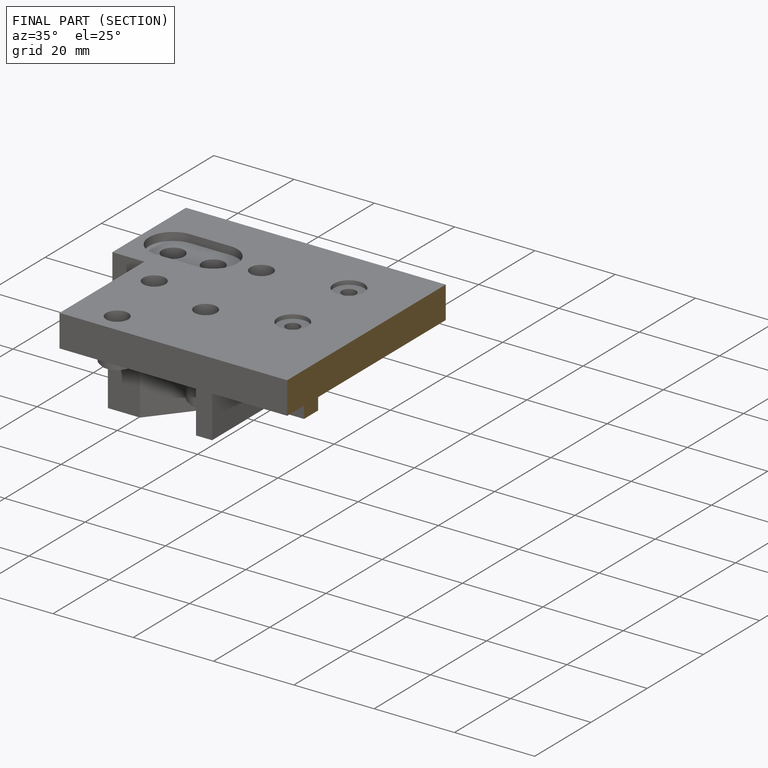
[diagram: finished part — half-section view (interior)]
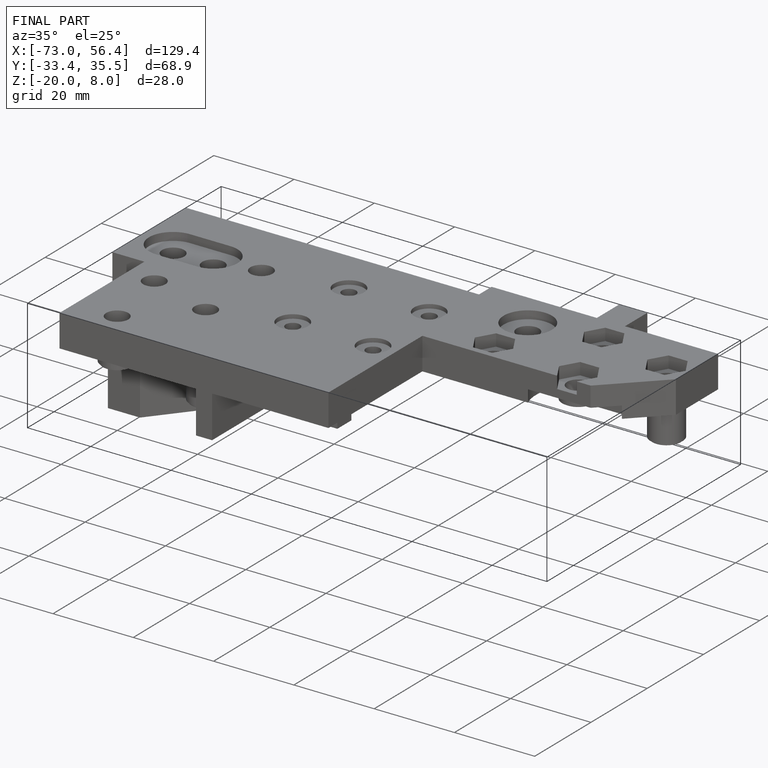
[diagram: finished part — iso view with bounding-box wireframe]
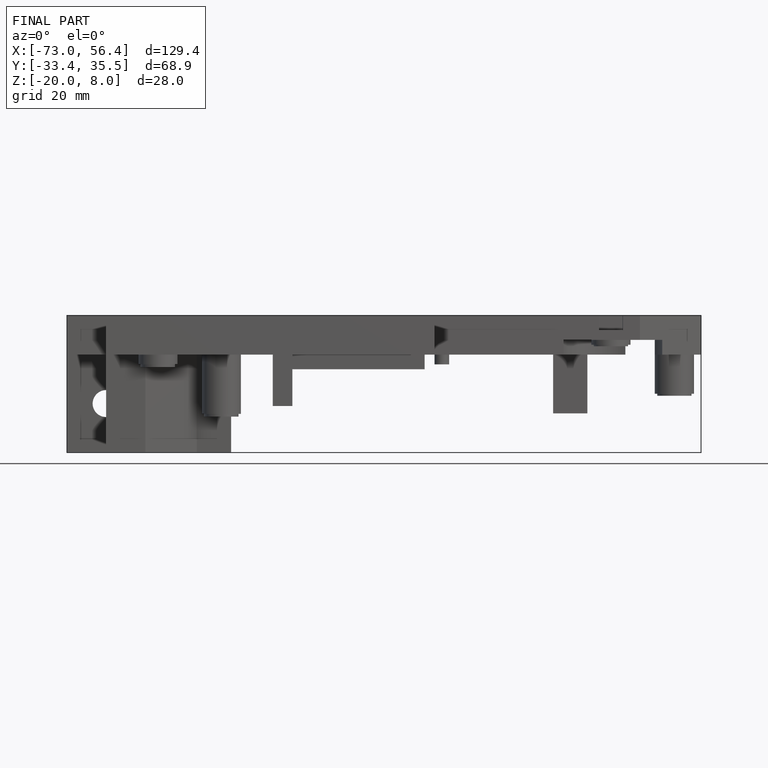
[diagram: finished part — front view with bounding-box wireframe]
